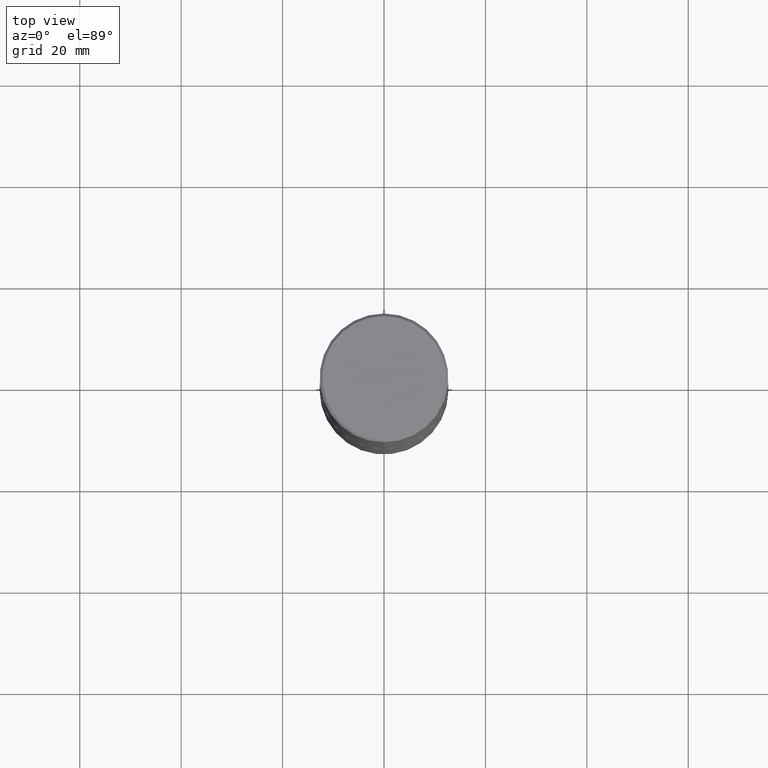
[diagram: clean part render]
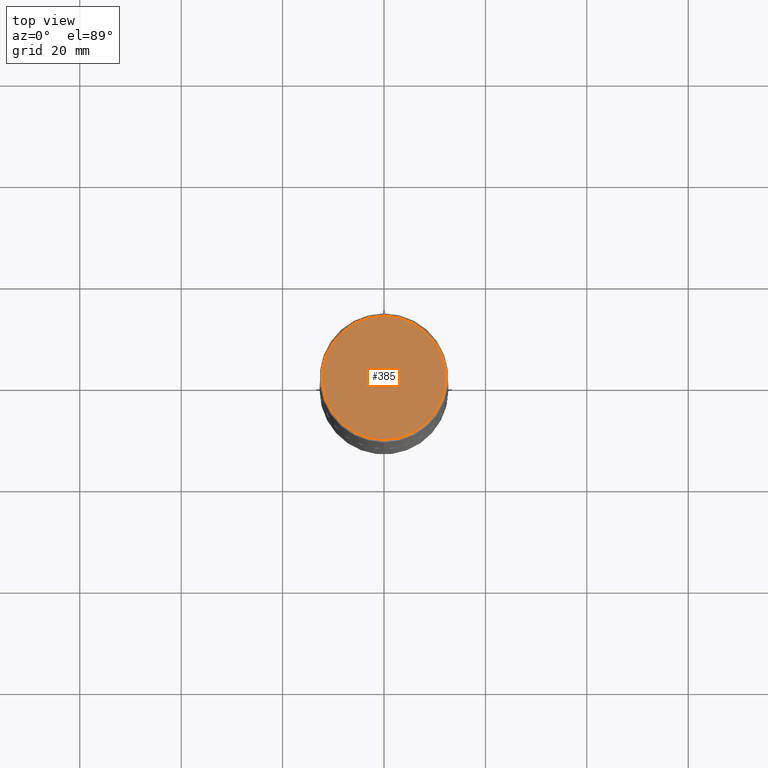
[diagram: same view with one face highlighted and labeled with its STEP entity id]
A machine part, top view. The second image highlights one B-rep face of the part: STEP entity #385.
In plain terms, the highlighted planar face has unit normal (0, -0, -1).
Its self-contained STEP definition (entity closure, byte-faithful):
#32 = AXIS2_PLACEMENT_3D ( 'NONE', #357, #133, #314 ) ;
#36 = VERTEX_POINT ( 'NONE', #284 ) ;
#46 = DIRECTION ( 'NONE',  ( 6.982962677686265922E-15, 1.000000000000000000, -3.490694428695902798E-15 ) ) ;
#63 = EDGE_CURVE ( 'NONE', #36, #287, #319, .T. ) ;
#79 = CARTESIAN_POINT ( 'NONE',  ( 3.351822085289408337E-15, 0.4800000000000000933, -1.729078590335627126E-15 ) ) ;
#102 = AXIS2_PLACEMENT_3D ( 'NONE', #79, #176, #46 ) ;
#124 = ORIENTED_EDGE ( 'NONE', *, *, #181, .T. ) ;
#131 = DIRECTION ( 'NONE',  ( -2.446018302604025378E-29, 3.490694428695902798E-15, 1.000000000000000000 ) ) ;
#133 = DIRECTION ( 'NONE',  ( -2.446018302604025378E-29, 3.490694428695902798E-15, 1.000000000000000000 ) ) ;
#145 = EDGE_LOOP ( 'NONE', ( #124, #339 ) ) ;
#176 = DIRECTION ( 'NONE',  ( 2.446018302604025097E-29, -3.490694428695902798E-15, -1.000000000000000000 ) ) ;
#181 = EDGE_CURVE ( 'NONE', #287, #36, #358, .T. ) ;
#226 = CARTESIAN_POINT ( 'NONE',  ( 3.421651712066271240E-15, 0.4800000000000000933, -1.782623854897220357E-15 ) ) ;
#281 = DIRECTION ( 'NONE',  ( -6.982962677686265922E-15, -1.000000000000000000, 3.490694428695902798E-15 ) ) ;
#284 = CARTESIAN_POINT ( 'NONE',  ( -3.361644018908050055E-15, -0.4800000000000000933, 1.568442796650846842E-15 ) ) ;
#287 = VERTEX_POINT ( 'NONE', #226 ) ;
#314 = DIRECTION ( 'NONE',  ( -6.982962677686265922E-15, -1.000000000000000000, 3.490694428695902798E-15 ) ) ;
#319 = CIRCLE ( 'NONE', #32, 0.4800000000000000933 ) ;
#339 = ORIENTED_EDGE ( 'NONE', *, *, #63, .T. ) ;
#357 = CARTESIAN_POINT ( 'NONE',  ( 2.619453942708643347E-45, -3.738203133764044518E-31, -1.070905291231867826E-16 ) ) ;
#358 = CIRCLE ( 'NONE', #402, 0.4800000000000000933 ) ;
#368 = PLANE ( 'NONE',  #102 ) ;
#385 = ADVANCED_FACE ( 'NONE', ( #393 ), #368, .F. ) ;
#393 = FACE_OUTER_BOUND ( 'NONE', #145, .T. ) ;
#402 = AXIS2_PLACEMENT_3D ( 'NONE', #415, #131, #281 ) ;
#415 = CARTESIAN_POINT ( 'NONE',  ( 2.619453942708643347E-45, -3.738203133764044518E-31, -1.070905291231867826E-16 ) ) ;